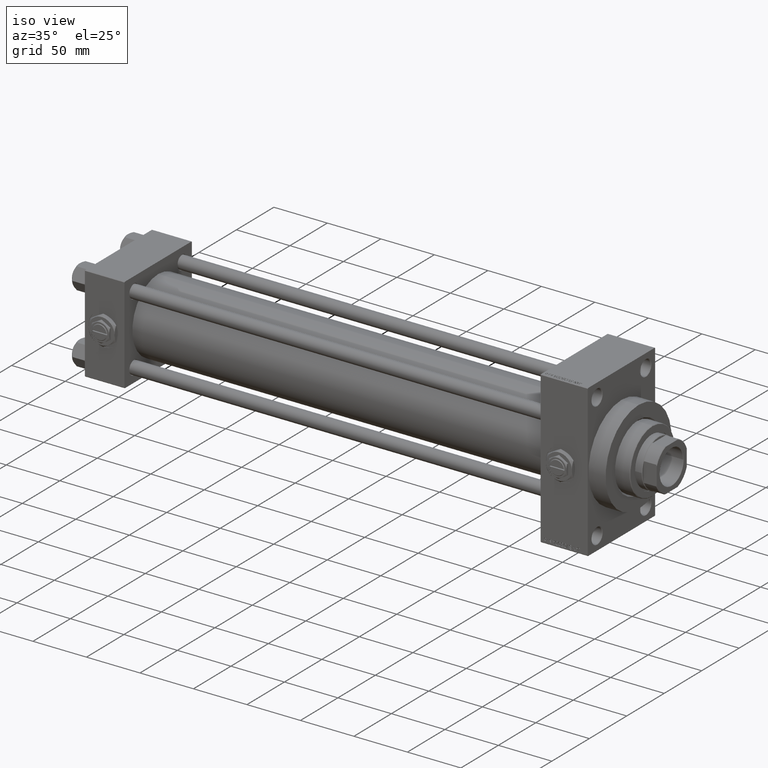
[diagram: clean part render]
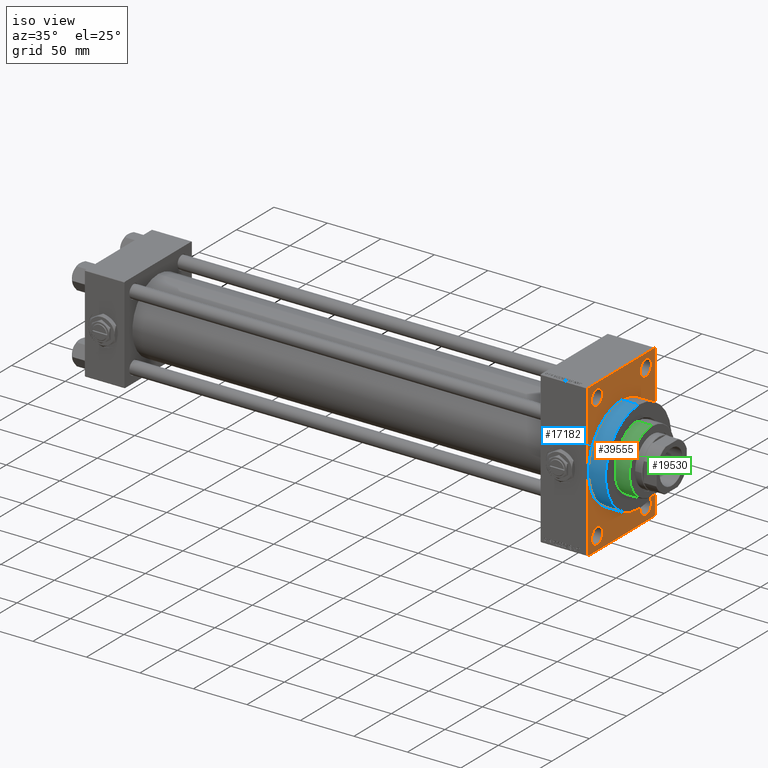
[diagram: same view with three faces highlighted in distinct colors, each labeled with its STEP entity id]
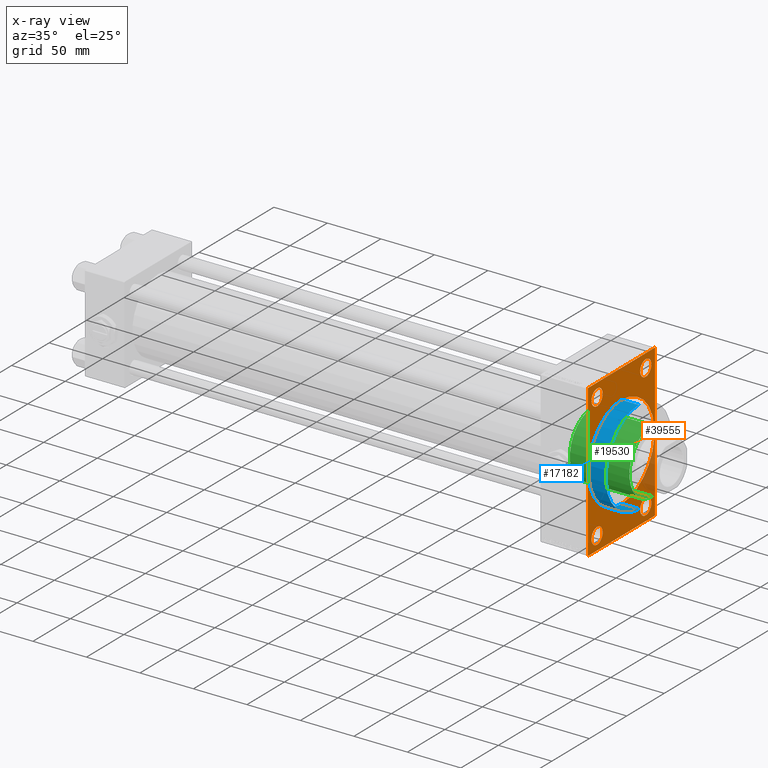
[diagram: x-ray of the same camera — body ghosted, the three highlighted faces saturated]
A machine part, iso view with three faces highlighted in distinct colors.
The next image is the same camera in x-ray (body ghosted, the three faces saturated) — at least one of them is partly hidden behind the body in this view.
Their STEP definitions:

[orange] entity #39555 — the highlighted planar face has unit normal (-1, 0, 0).
#227 = VERTEX_POINT ( 'NONE', #31252 ) ;
#506 = DIRECTION ( 'NONE',  ( 0.000000000000000000, 0.000000000000000000, -1.000000000000000000 ) ) ;
#776 = VECTOR ( 'NONE', #506, 1000.000000000000000 ) ;
#1196 = FACE_BOUND ( 'NONE', #8517, .T. ) ;
#1385 = AXIS2_PLACEMENT_3D ( 'NONE', #13616, #17339, #32536 ) ;
#1451 = CARTESIAN_POINT ( 'NONE',  ( 470.0000000000000000, -44.50000000000002842, -71.00000000000000000 ) ) ;
#1696 = FACE_OUTER_BOUND ( 'NONE', #31600, .T. ) ;
#1914 = CARTESIAN_POINT ( 'NONE',  ( 470.0000000000000000, 0.000000000000000000, 44.00000000000000000 ) ) ;
#1939 = CARTESIAN_POINT ( 'NONE',  ( 470.0000000000000000, -32.50000000000000000, -51.00000000000003553 ) ) ;
#2483 = DIRECTION ( 'NONE',  ( 0.000000000000000000, -4.886545002751570165E-17, -1.000000000000000000 ) ) ;
#2509 = VERTEX_POINT ( 'NONE', #42562 ) ;
#3155 = ORIENTED_EDGE ( 'NONE', *, *, #38326, .T. ) ;
#3654 = EDGE_CURVE ( 'NONE', #36387, #44453, #12594, .T. ) ;
#4515 = VECTOR ( 'NONE', #2483, 1000.000000000000000 ) ;
#4693 = FACE_BOUND ( 'NONE', #47343, .T. ) ;
#5123 = VECTOR ( 'NONE', #5397, 1000.000000000000000 ) ;
#5171 = DIRECTION ( 'NONE',  ( -0.000000000000000000, 0.000000000000000000, 1.000000000000000000 ) ) ;
#5397 = DIRECTION ( 'NONE',  ( 0.000000000000000000, -1.000000000000000000, -1.541976423090495633E-16 ) ) ;
#5512 = DIRECTION ( 'NONE',  ( -1.000000000000000000, 0.000000000000000000, -0.000000000000000000 ) ) ;
#6057 = CARTESIAN_POINT ( 'NONE',  ( 470.0000000000000000, -44.99999999999997158, 70.49999999999998579 ) ) ;
#6242 = CIRCLE ( 'NONE', #34082, 7.499999999999944045 ) ;
#7240 = VERTEX_POINT ( 'NONE', #6057 ) ;
#7297 = CARTESIAN_POINT ( 'NONE',  ( 470.0000000000000000, 45.00000000000002132, 71.00000000000000000 ) ) ;
#7677 = EDGE_CURVE ( 'NONE', #46920, #8427, #6242, .T. ) ;
#8427 = VERTEX_POINT ( 'NONE', #1939 ) ;
#8517 = EDGE_LOOP ( 'NONE', ( #9200, #23622 ) ) ;
#8810 = VECTOR ( 'NONE', #18731, 1000.000000000000000 ) ;
#9175 = VECTOR ( 'NONE', #32959, 1000.000000000000114 ) ;
#9200 = ORIENTED_EDGE ( 'NONE', *, *, #16451, .T. ) ;
#9260 = DIRECTION ( 'NONE',  ( -1.000000000000000000, 0.000000000000000000, -0.000000000000000000 ) ) ;
#10003 = CARTESIAN_POINT ( 'NONE',  ( 470.0000000000000000, 45.00000000000002132, 70.50000000000000000 ) ) ;
#10204 = ORIENTED_EDGE ( 'NONE', *, *, #27173, .T. ) ;
#10417 = DIRECTION ( 'NONE',  ( 0.000000000000000000, 0.000000000000000000, 1.000000000000000000 ) ) ;
#11445 = CARTESIAN_POINT ( 'NONE',  ( 470.0000000000000000, 44.50000000000002132, 71.00000000000000000 ) ) ;
#12071 = ORIENTED_EDGE ( 'NONE', *, *, #3654, .F. ) ;
#12097 = ORIENTED_EDGE ( 'NONE', *, *, #38555, .T. ) ;
#12594 = CIRCLE ( 'NONE', #17360, 44.00000000000000000 ) ;
#12675 = AXIS2_PLACEMENT_3D ( 'NONE', #34687, #9260, #39388 ) ;
#12991 = VERTEX_POINT ( 'NONE', #13394 ) ;
#12992 = CARTESIAN_POINT ( 'NONE',  ( 470.0000000000000000, -44.50000000000000000, -71.00000000000000000 ) ) ;
#13394 = CARTESIAN_POINT ( 'NONE',  ( 470.0000000000000000, -32.50000000000000000, 65.99999999999994316 ) ) ;
#13460 = CIRCLE ( 'NONE', #12675, 7.499999999999936939 ) ;
#13616 = CARTESIAN_POINT ( 'NONE',  ( 470.0000000000000000, 32.50000000000000711, 58.50000000000000711 ) ) ;
#14119 = CIRCLE ( 'NONE', #41159, 7.499999999999936939 ) ;
#14123 = LINE ( 'NONE', #18822, #42709 ) ;
#15282 = EDGE_CURVE ( 'NONE', #30738, #45840, #32023, .T. ) ;
#16451 = EDGE_CURVE ( 'NONE', #28144, #2509, #35373, .T. ) ;
#16483 = CARTESIAN_POINT ( 'NONE',  ( 470.0000000000000000, -32.50000000000000000, -58.49999999999999289 ) ) ;
#17117 = VERTEX_POINT ( 'NONE', #48534 ) ;
#17339 = DIRECTION ( 'NONE',  ( -1.000000000000000000, 0.000000000000000000, -0.000000000000000000 ) ) ;
#17360 = AXIS2_PLACEMENT_3D ( 'NONE', #30790, #42037, #34783 ) ;
#17679 = EDGE_CURVE ( 'NONE', #20058, #30929, #32714, .T. ) ;
#17734 = CARTESIAN_POINT ( 'NONE',  ( 470.0000000000000000, -32.50000000000000000, -65.99999999999992895 ) ) ;
#17861 = DIRECTION ( 'NONE',  ( -1.000000000000000000, 0.000000000000000000, -0.000000000000000000 ) ) ;
#18420 = EDGE_CURVE ( 'NONE', #12991, #17117, #21106, .T. ) ;
#18731 = DIRECTION ( 'NONE',  ( 0.000000000000000000, -1.000000000000000000, -1.541976423090495387E-16 ) ) ;
#18822 = CARTESIAN_POINT ( 'NONE',  ( 470.0000000000000000, 45.00000000000001421, -70.49999999999997158 ) ) ;
#19656 = CARTESIAN_POINT ( 'NONE',  ( 470.0000000000000000, -32.50000000000000000, -58.49999999999999289 ) ) ;
#19855 = FACE_BOUND ( 'NONE', #24682, .T. ) ;
#20058 = VERTEX_POINT ( 'NONE', #10003 ) ;
#20470 = CARTESIAN_POINT ( 'NONE',  ( 470.0000000000000000, 32.50000000000000711, -58.50000000000000000 ) ) ;
#20954 = ORIENTED_EDGE ( 'NONE', *, *, #23925, .F. ) ;
#20956 = CARTESIAN_POINT ( 'NONE',  ( 470.0000000000000000, -44.49999999999995026, 70.99999999999998579 ) ) ;
#21106 = CIRCLE ( 'NONE', #47348, 7.499999999999936939 ) ;
#21223 = EDGE_CURVE ( 'NONE', #8427, #46920, #31505, .T. ) ;
#21399 = CARTESIAN_POINT ( 'NONE',  ( 470.0000000000000000, 44.49999999999995737, -70.99999999999998579 ) ) ;
#22289 = EDGE_CURVE ( 'NONE', #30738, #42637, #14123, .T. ) ;
#22663 = CARTESIAN_POINT ( 'NONE',  ( 470.0000000000000000, -44.99999999999997158, 70.99999999999998579 ) ) ;
#22738 = ORIENTED_EDGE ( 'NONE', *, *, #45921, .T. ) ;
#22925 = DIRECTION ( 'NONE',  ( -1.000000000000000000, 0.000000000000000000, -0.000000000000000000 ) ) ;
#23276 = ORIENTED_EDGE ( 'NONE', *, *, #40519, .T. ) ;
#23583 = FACE_BOUND ( 'NONE', #24887, .T. ) ;
#23622 = ORIENTED_EDGE ( 'NONE', *, *, #31996, .T. ) ;
#23925 = EDGE_CURVE ( 'NONE', #44453, #36387, #46749, .T. ) ;
#23926 = ORIENTED_EDGE ( 'NONE', *, *, #34547, .T. ) ;
#24682 = EDGE_LOOP ( 'NONE', ( #20954, #12071 ) ) ;
#24828 = VERTEX_POINT ( 'NONE', #45890 ) ;
#24887 = EDGE_LOOP ( 'NONE', ( #12097, #42223 ) ) ;
#24983 = ORIENTED_EDGE ( 'NONE', *, *, #22289, .T. ) ;
#25499 = CARTESIAN_POINT ( 'NONE',  ( 470.0000000000000000, -32.50000000000000000, 58.50000000000000711 ) ) ;
#26271 = CIRCLE ( 'NONE', #31796, 7.499999999999951150 ) ;
#26875 = AXIS2_PLACEMENT_3D ( 'NONE', #45651, #27181, #30915 ) ;
#27173 = EDGE_CURVE ( 'NONE', #7240, #227, #30613, .T. ) ;
#27181 = DIRECTION ( 'NONE',  ( 1.000000000000000000, 0.000000000000000000, 0.000000000000000000 ) ) ;
#27369 = DIRECTION ( 'NONE',  ( 0.000000000000000000, 0.000000000000000000, 1.000000000000000000 ) ) ;
#28144 = VERTEX_POINT ( 'NONE', #44921 ) ;
#28268 = CARTESIAN_POINT ( 'NONE',  ( 470.0000000000000000, 45.00000000000001421, -70.99999999999998579 ) ) ;
#28642 = CARTESIAN_POINT ( 'NONE',  ( 470.0000000000000000, -32.50000000000000000, 58.50000000000000711 ) ) ;
#29309 = DIRECTION ( 'NONE',  ( -0.000000000000000000, 0.7071067811865769936, 0.7071067811865181518 ) ) ;
#29454 = LINE ( 'NONE', #7297, #8810 ) ;
#30198 = DIRECTION ( 'NONE',  ( -0.000000000000000000, -0.7071067811865426878, -0.7071067811865524577 ) ) ;
#30613 = LINE ( 'NONE', #22663, #776 ) ;
#30738 = VERTEX_POINT ( 'NONE', #21399 ) ;
#30790 = CARTESIAN_POINT ( 'NONE',  ( 470.0000000000000000, 0.000000000000000000, 0.000000000000000000 ) ) ;
#30915 = DIRECTION ( 'NONE',  ( 0.000000000000000000, 0.000000000000000000, -1.000000000000000000 ) ) ;
#30929 = VERTEX_POINT ( 'NONE', #11445 ) ;
#31252 = CARTESIAN_POINT ( 'NONE',  ( 470.0000000000000000, -44.99999999999997158, -70.50000000000005684 ) ) ;
#31300 = DIRECTION ( 'NONE',  ( -1.000000000000000000, 0.000000000000000000, -0.000000000000000000 ) ) ;
#31505 = CIRCLE ( 'NONE', #47451, 7.499999999999944045 ) ;
#31600 = EDGE_LOOP ( 'NONE', ( #10204, #23276, #44201, #24983, #31701, #33662, #36403, #23926 ) ) ;
#31701 = ORIENTED_EDGE ( 'NONE', *, *, #36926, .F. ) ;
#31796 = AXIS2_PLACEMENT_3D ( 'NONE', #33792, #17861, #10417 ) ;
#31934 = DIRECTION ( 'NONE',  ( 0.000000000000000000, 0.000000000000000000, 1.000000000000000000 ) ) ;
#31996 = EDGE_CURVE ( 'NONE', #2509, #28144, #26271, .T. ) ;
#32023 = LINE ( 'NONE', #28268, #5123 ) ;
#32536 = DIRECTION ( 'NONE',  ( 0.000000000000000000, 0.000000000000000000, 1.000000000000000000 ) ) ;
#32714 = LINE ( 'NONE', #45345, #9175 ) ;
#32959 = DIRECTION ( 'NONE',  ( 0.000000000000000000, -0.7071067811865474617, 0.7071067811865474617 ) ) ;
#33230 = DIRECTION ( 'NONE',  ( -1.000000000000000000, 0.000000000000000000, -0.000000000000000000 ) ) ;
#33662 = ORIENTED_EDGE ( 'NONE', *, *, #17679, .T. ) ;
#33713 = EDGE_CURVE ( 'NONE', #30929, #42668, #29454, .T. ) ;
#33792 = CARTESIAN_POINT ( 'NONE',  ( 470.0000000000000000, 32.50000000000000711, -58.50000000000000000 ) ) ;
#33942 = CARTESIAN_POINT ( 'NONE',  ( 470.0000000000000000, -44.99999999999997158, 70.49999999999998579 ) ) ;
#34082 = AXIS2_PLACEMENT_3D ( 'NONE', #16483, #39156, #39394 ) ;
#34547 = EDGE_CURVE ( 'NONE', #42668, #7240, #45656, .T. ) ;
#34559 = CARTESIAN_POINT ( 'NONE',  ( 470.0000000000000000, 32.50000000000000711, 65.99999999999994316 ) ) ;
#34687 = CARTESIAN_POINT ( 'NONE',  ( 470.0000000000000000, 32.50000000000000711, 58.50000000000000711 ) ) ;
#34783 = DIRECTION ( 'NONE',  ( 0.000000000000000000, 0.000000000000000000, -1.000000000000000000 ) ) ;
#35373 = CIRCLE ( 'NONE', #40152, 7.499999999999951150 ) ;
#35691 = DIRECTION ( 'NONE',  ( -1.000000000000000000, 0.000000000000000000, -0.000000000000000000 ) ) ;
#35812 = LINE ( 'NONE', #1451, #41228 ) ;
#36387 = VERTEX_POINT ( 'NONE', #39361 ) ;
#36403 = ORIENTED_EDGE ( 'NONE', *, *, #33713, .T. ) ;
#36583 = CARTESIAN_POINT ( 'NONE',  ( 470.0000000000000000, 45.00000000000002132, 71.00000000000000000 ) ) ;
#36926 = EDGE_CURVE ( 'NONE', #20058, #42637, #40320, .T. ) ;
#37914 = ORIENTED_EDGE ( 'NONE', *, *, #21223, .T. ) ;
#38107 = VERTEX_POINT ( 'NONE', #34559 ) ;
#38326 = EDGE_CURVE ( 'NONE', #24828, #38107, #46701, .T. ) ;
#38555 = EDGE_CURVE ( 'NONE', #17117, #12991, #14119, .T. ) ;
#38791 = FACE_BOUND ( 'NONE', #40013, .T. ) ;
#39156 = DIRECTION ( 'NONE',  ( -1.000000000000000000, 0.000000000000000000, -0.000000000000000000 ) ) ;
#39276 = PLANE ( 'NONE',  #43556 ) ;
#39361 = CARTESIAN_POINT ( 'NONE',  ( 470.0000000000000000, 5.388445916248353619E-15, -44.00000000000000000 ) ) ;
#39388 = DIRECTION ( 'NONE',  ( 0.000000000000000000, 0.000000000000000000, 1.000000000000000000 ) ) ;
#39394 = DIRECTION ( 'NONE',  ( 0.000000000000000000, 0.000000000000000000, 1.000000000000000000 ) ) ;
#39555 = ADVANCED_FACE ( 'NONE', ( #23583, #38791, #1196, #4693, #19855, #1696 ), #39276, .F. ) ;
#40013 = EDGE_LOOP ( 'NONE', ( #41456, #37914 ) ) ;
#40152 = AXIS2_PLACEMENT_3D ( 'NONE', #20470, #35691, #31934 ) ;
#40320 = LINE ( 'NONE', #36583, #4515 ) ;
#40519 = EDGE_CURVE ( 'NONE', #227, #45840, #35812, .T. ) ;
#41159 = AXIS2_PLACEMENT_3D ( 'NONE', #25499, #33230, #48430 ) ;
#41228 = VECTOR ( 'NONE', #43535, 999.9999999999998863 ) ;
#41456 = ORIENTED_EDGE ( 'NONE', *, *, #7677, .T. ) ;
#42037 = DIRECTION ( 'NONE',  ( 1.000000000000000000, 0.000000000000000000, 0.000000000000000000 ) ) ;
#42223 = ORIENTED_EDGE ( 'NONE', *, *, #18420, .T. ) ;
#42562 = CARTESIAN_POINT ( 'NONE',  ( 470.0000000000000000, 32.50000000000000711, -51.00000000000004263 ) ) ;
#42637 = VERTEX_POINT ( 'NONE', #49181 ) ;
#42668 = VERTEX_POINT ( 'NONE', #20956 ) ;
#42709 = VECTOR ( 'NONE', #29309, 1000.000000000000000 ) ;
#43283 = CARTESIAN_POINT ( 'NONE',  ( 470.0000000000000000, 0.000000000000000000, 0.000000000000000000 ) ) ;
#43535 = DIRECTION ( 'NONE',  ( 0.000000000000000000, 0.7071067811865574537, -0.7071067811865376918 ) ) ;
#43556 = AXIS2_PLACEMENT_3D ( 'NONE', #43283, #31300, #5171 ) ;
#43875 = DIRECTION ( 'NONE',  ( 0.000000000000000000, 0.000000000000000000, 1.000000000000000000 ) ) ;
#44201 = ORIENTED_EDGE ( 'NONE', *, *, #15282, .F. ) ;
#44453 = VERTEX_POINT ( 'NONE', #1914 ) ;
#44921 = CARTESIAN_POINT ( 'NONE',  ( 470.0000000000000000, 32.50000000000000711, -65.99999999999994316 ) ) ;
#45345 = CARTESIAN_POINT ( 'NONE',  ( 470.0000000000000000, 44.50000000000002132, 71.00000000000000000 ) ) ;
#45457 = VECTOR ( 'NONE', #30198, 1000.000000000000000 ) ;
#45651 = CARTESIAN_POINT ( 'NONE',  ( 470.0000000000000000, 0.000000000000000000, 0.000000000000000000 ) ) ;
#45656 = LINE ( 'NONE', #33942, #45457 ) ;
#45840 = VERTEX_POINT ( 'NONE', #12992 ) ;
#45890 = CARTESIAN_POINT ( 'NONE',  ( 470.0000000000000000, 32.50000000000000711, 51.00000000000007105 ) ) ;
#45921 = EDGE_CURVE ( 'NONE', #38107, #24828, #13460, .T. ) ;
#46701 = CIRCLE ( 'NONE', #1385, 7.499999999999936939 ) ;
#46749 = CIRCLE ( 'NONE', #26875, 44.00000000000000000 ) ;
#46920 = VERTEX_POINT ( 'NONE', #17734 ) ;
#47343 = EDGE_LOOP ( 'NONE', ( #3155, #22738 ) ) ;
#47348 = AXIS2_PLACEMENT_3D ( 'NONE', #28642, #5512, #43875 ) ;
#47451 = AXIS2_PLACEMENT_3D ( 'NONE', #19656, #22925, #27369 ) ;
#48430 = DIRECTION ( 'NONE',  ( 0.000000000000000000, 0.000000000000000000, 1.000000000000000000 ) ) ;
#48534 = CARTESIAN_POINT ( 'NONE',  ( 470.0000000000000000, -32.50000000000000000, 51.00000000000007105 ) ) ;
#49181 = CARTESIAN_POINT ( 'NONE',  ( 470.0000000000000000, 45.00000000000001421, -70.49999999999997158 ) ) ;

[blue] entity #17182 — the highlighted cylindrical surface (partial cylindrical patch) has radius 44 mm, axis along (-1, -0, -0).
#158 = CARTESIAN_POINT ( 'NONE',  ( 486.0000000000000000, 5.388445916248353619E-15, -44.00000000000000000 ) ) ;
#361 = AXIS2_PLACEMENT_3D ( 'NONE', #40729, #36979, #6094 ) ;
#682 = CYLINDRICAL_SURFACE ( 'NONE', #10763, 44.00000000000000000 ) ;
#1619 = LINE ( 'NONE', #12318, #33422 ) ;
#1914 = CARTESIAN_POINT ( 'NONE',  ( 470.0000000000000000, 0.000000000000000000, 44.00000000000000000 ) ) ;
#4378 = DIRECTION ( 'NONE',  ( -1.000000000000000000, -0.000000000000000000, -0.000000000000000000 ) ) ;
#5938 = FACE_OUTER_BOUND ( 'NONE', #19632, .T. ) ;
#6094 = DIRECTION ( 'NONE',  ( 0.000000000000000000, 0.000000000000000000, -1.000000000000000000 ) ) ;
#9174 = VERTEX_POINT ( 'NONE', #43538 ) ;
#10763 = AXIS2_PLACEMENT_3D ( 'NONE', #41561, #30311, #23316 ) ;
#11716 = CARTESIAN_POINT ( 'NONE',  ( 486.0000000000000000, 0.000000000000000000, 44.00000000000000000 ) ) ;
#11984 = EDGE_CURVE ( 'NONE', #9174, #14117, #39283, .T. ) ;
#12318 = CARTESIAN_POINT ( 'NONE',  ( 486.0000000000000000, 5.388445916248353619E-15, -44.00000000000000000 ) ) ;
#14117 = VERTEX_POINT ( 'NONE', #158 ) ;
#17182 = ADVANCED_FACE ( 'NONE', ( #5938 ), #682, .T. ) ;
#18927 = DIRECTION ( 'NONE',  ( -1.000000000000000000, -0.000000000000000000, -0.000000000000000000 ) ) ;
#19632 = EDGE_LOOP ( 'NONE', ( #38120, #45225, #28725, #31054 ) ) ;
#23316 = DIRECTION ( 'NONE',  ( 0.000000000000000000, 0.000000000000000000, 1.000000000000000000 ) ) ;
#23925 = EDGE_CURVE ( 'NONE', #44453, #36387, #46749, .T. ) ;
#24172 = EDGE_CURVE ( 'NONE', #9174, #44453, #27354, .T. ) ;
#26875 = AXIS2_PLACEMENT_3D ( 'NONE', #45651, #27181, #30915 ) ;
#27181 = DIRECTION ( 'NONE',  ( 1.000000000000000000, 0.000000000000000000, 0.000000000000000000 ) ) ;
#27354 = LINE ( 'NONE', #11716, #36412 ) ;
#28725 = ORIENTED_EDGE ( 'NONE', *, *, #24172, .T. ) ;
#30311 = DIRECTION ( 'NONE',  ( -1.000000000000000000, -0.000000000000000000, -0.000000000000000000 ) ) ;
#30915 = DIRECTION ( 'NONE',  ( 0.000000000000000000, 0.000000000000000000, -1.000000000000000000 ) ) ;
#31054 = ORIENTED_EDGE ( 'NONE', *, *, #23925, .T. ) ;
#33422 = VECTOR ( 'NONE', #4378, 1000.000000000000000 ) ;
#36387 = VERTEX_POINT ( 'NONE', #39361 ) ;
#36412 = VECTOR ( 'NONE', #18927, 1000.000000000000000 ) ;
#36979 = DIRECTION ( 'NONE',  ( 1.000000000000000000, 0.000000000000000000, 0.000000000000000000 ) ) ;
#38120 = ORIENTED_EDGE ( 'NONE', *, *, #48794, .F. ) ;
#39283 = CIRCLE ( 'NONE', #361, 44.00000000000000000 ) ;
#39361 = CARTESIAN_POINT ( 'NONE',  ( 470.0000000000000000, 5.388445916248353619E-15, -44.00000000000000000 ) ) ;
#40729 = CARTESIAN_POINT ( 'NONE',  ( 486.0000000000000000, 0.000000000000000000, 0.000000000000000000 ) ) ;
#41561 = CARTESIAN_POINT ( 'NONE',  ( 486.0000000000000000, 0.000000000000000000, 0.000000000000000000 ) ) ;
#43538 = CARTESIAN_POINT ( 'NONE',  ( 486.0000000000000000, 0.000000000000000000, 44.00000000000000000 ) ) ;
#44453 = VERTEX_POINT ( 'NONE', #1914 ) ;
#45225 = ORIENTED_EDGE ( 'NONE', *, *, #11984, .F. ) ;
#45651 = CARTESIAN_POINT ( 'NONE',  ( 470.0000000000000000, 0.000000000000000000, 0.000000000000000000 ) ) ;
#46749 = CIRCLE ( 'NONE', #26875, 44.00000000000000000 ) ;
#48794 = EDGE_CURVE ( 'NONE', #14117, #36387, #1619, .T. ) ;

[green] entity #19530 — the highlighted cylindrical surface (partial cylindrical patch) has radius 30 mm, axis along (-1, 0, 0).
#763 = DIRECTION ( 'NONE',  ( -0.000000000000000000, -0.000000000000000000, -1.000000000000000000 ) ) ;
#1772 = CARTESIAN_POINT ( 'NONE',  ( 30.00000000000000000, 3.673940397442059178E-15, 0.000000000000000000 ) ) ;
#2379 = EDGE_CURVE ( 'NONE', #45360, #21496, #11800, .T. ) ;
#5152 = CARTESIAN_POINT ( 'NONE',  ( -30.00000000000000000, 0.000000000000000000, 55.75999999999999801 ) ) ;
#9338 = VECTOR ( 'NONE', #33424, 1000.000000000000000 ) ;
#10888 = VECTOR ( 'NONE', #45662, 1000.000000000000000 ) ;
#11783 = CARTESIAN_POINT ( 'NONE',  ( -30.00000000000000000, 0.000000000000000000, 43.25999999999999801 ) ) ;
#11800 = CIRCLE ( 'NONE', #32424, 30.00000000000000000 ) ;
#12931 = CYLINDRICAL_SURFACE ( 'NONE', #17173, 30.00000000000000000 ) ;
#14497 = LINE ( 'NONE', #18227, #9338 ) ;
#15490 = CARTESIAN_POINT ( 'NONE',  ( 0.000000000000000000, 0.000000000000000000, 0.000000000000000000 ) ) ;
#15733 = DIRECTION ( 'NONE',  ( 1.000000000000000000, 0.000000000000000000, 0.000000000000000000 ) ) ;
#15935 = DIRECTION ( 'NONE',  ( -1.000000000000000000, 0.000000000000000000, 0.000000000000000000 ) ) ;
#16776 = VERTEX_POINT ( 'NONE', #1772 ) ;
#17173 = AXIS2_PLACEMENT_3D ( 'NONE', #34864, #763, #15935 ) ;
#17929 = DIRECTION ( 'NONE',  ( 1.000000000000000000, 0.000000000000000000, 0.000000000000000000 ) ) ;
#18184 = DIRECTION ( 'NONE',  ( 0.000000000000000000, 0.000000000000000000, -1.000000000000000000 ) ) ;
#18227 = CARTESIAN_POINT ( 'NONE',  ( 30.00000000000000000, 3.673940397442059178E-15, 43.25999999999999801 ) ) ;
#19530 = ADVANCED_FACE ( 'NONE', ( #19648 ), #12931, .T. ) ;
#19648 = FACE_OUTER_BOUND ( 'NONE', #45254, .T. ) ;
#21496 = VERTEX_POINT ( 'NONE', #48434 ) ;
#23455 = ORIENTED_EDGE ( 'NONE', *, *, #37671, .F. ) ;
#24004 = EDGE_CURVE ( 'NONE', #16776, #41585, #38020, .T. ) ;
#24952 = ORIENTED_EDGE ( 'NONE', *, *, #24004, .T. ) ;
#29637 = CARTESIAN_POINT ( 'NONE',  ( 0.000000000000000000, 0.000000000000000000, 55.75999999999999801 ) ) ;
#31617 = AXIS2_PLACEMENT_3D ( 'NONE', #15490, #34664, #15733 ) ;
#32424 = AXIS2_PLACEMENT_3D ( 'NONE', #29637, #18184, #17929 ) ;
#33424 = DIRECTION ( 'NONE',  ( -0.000000000000000000, -0.000000000000000000, -1.000000000000000000 ) ) ;
#34664 = DIRECTION ( 'NONE',  ( 0.000000000000000000, 0.000000000000000000, 1.000000000000000000 ) ) ;
#34864 = CARTESIAN_POINT ( 'NONE',  ( 0.000000000000000000, 0.000000000000000000, 43.25999999999999801 ) ) ;
#37671 = EDGE_CURVE ( 'NONE', #45360, #41585, #41197, .T. ) ;
#38020 = CIRCLE ( 'NONE', #31617, 30.00000000000000000 ) ;
#39114 = EDGE_CURVE ( 'NONE', #21496, #16776, #14497, .T. ) ;
#41197 = LINE ( 'NONE', #11783, #10888 ) ;
#41585 = VERTEX_POINT ( 'NONE', #49236 ) ;
#44188 = ORIENTED_EDGE ( 'NONE', *, *, #2379, .T. ) ;
#45254 = EDGE_LOOP ( 'NONE', ( #44188, #48745, #24952, #23455 ) ) ;
#45360 = VERTEX_POINT ( 'NONE', #5152 ) ;
#45662 = DIRECTION ( 'NONE',  ( -0.000000000000000000, -0.000000000000000000, -1.000000000000000000 ) ) ;
#48434 = CARTESIAN_POINT ( 'NONE',  ( 30.00000000000000000, 3.673940397442059178E-15, 55.75999999999999801 ) ) ;
#48745 = ORIENTED_EDGE ( 'NONE', *, *, #39114, .T. ) ;
#49236 = CARTESIAN_POINT ( 'NONE',  ( -30.00000000000000000, 0.000000000000000000, 0.000000000000000000 ) ) ;